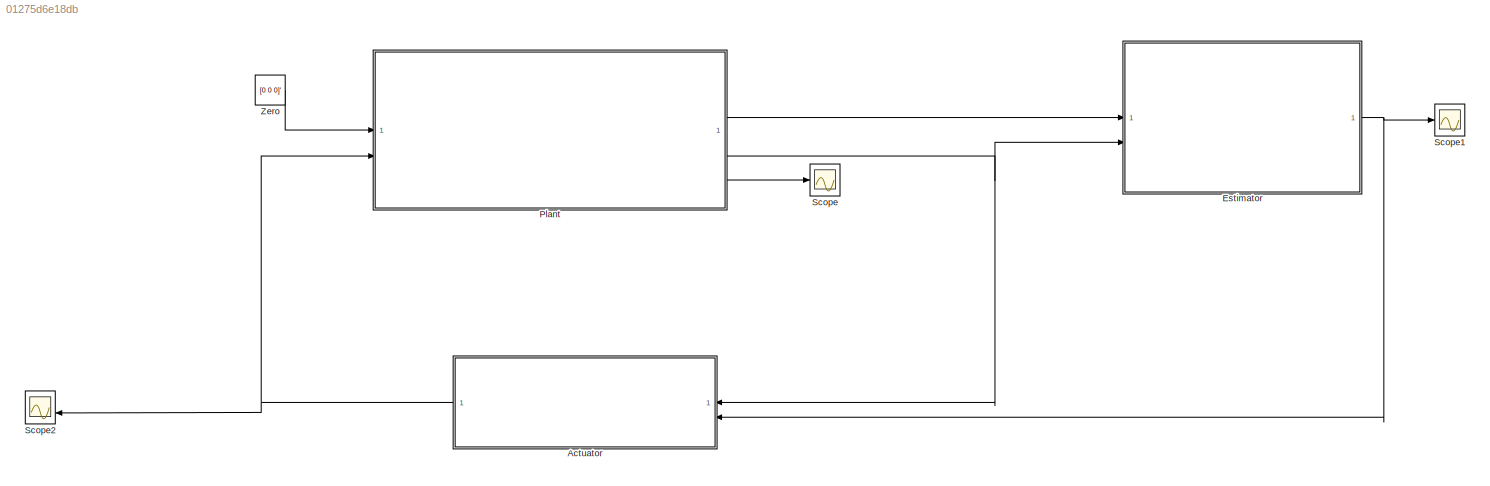
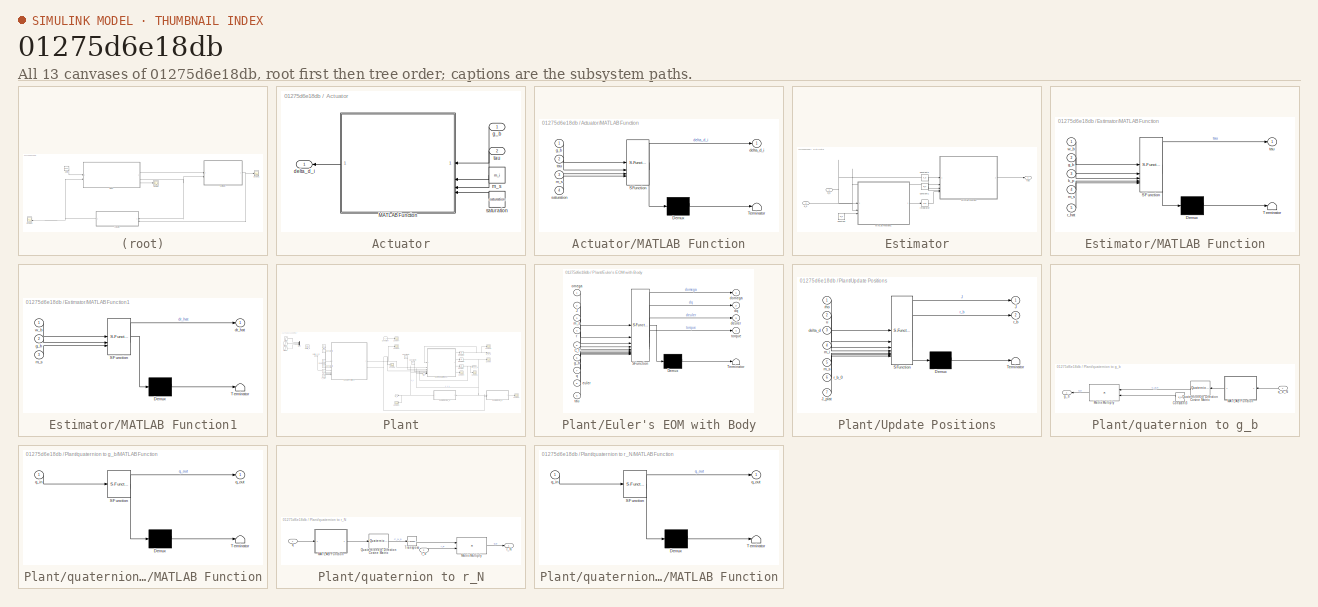
[diagram: thumbnail index - all 13 canvases of the model, root first then tree order]
MODEL slx_01275d6e18db
KIND model
CONFIG AbsTol = 1e-8
CONFIG EnableMultiTasking = off
CONFIG FixedStep = 0.05
CONFIG MaxStep = auto
CONFIG MinStep = auto
CONFIG RelTol = 1e-8
CONFIG SampleTimeConstraint = Unconstrained
CONFIG SolverName = ode15s
CONFIG StartTime = 0.0
CONFIG StopTime = tspan
BLOCK [SubSystem] Actuator
  NameLocation = top
BLOCK [SubSystem] Actuator/MATLAB Function
  ErrorFcn = Stateflow.Translate.translate
  NameLocation = top
  PermitHierarchicalResolution = ExplicitOnly
  SFBlockType = MATLAB Function
  TreatAsAtomicUnit = on
BLOCK [Demux] Actuator/MATLAB Function/ Demux 
  Outputs = 1
BLOCK [S-Function] Actuator/MATLAB Function/ SFunction 
  EnableBusSupport = on
  FunctionName = sf_sfun
  PortCounts = [4 2]
  SFcnIsStateOwnerBlock = off
  SFunctionDeploymentMode = off
  Tag = Stateflow S-Function 7
BLOCK [Terminator] Actuator/MATLAB Function/ Terminator 
BLOCK [Outport] Actuator/MATLAB Function/delta_d_i
BLOCK [Inport] Actuator/MATLAB Function/g_b
BLOCK [Inport] Actuator/MATLAB Function/m_s
  Port = 3
BLOCK [Inport] Actuator/MATLAB Function/saturation
  Port = 4
BLOCK [Inport] Actuator/MATLAB Function/tau
  Port = 2
BLOCK [Outport] Actuator/delta_d_i
  NameLocation = top
BLOCK [Inport] Actuator/g_b
  NameLocation = top
BLOCK [Constant] Actuator/m_s
  NameLocation = top
  Value = m_i
BLOCK [Constant] Actuator/saturation
  NameLocation = top
  Value = saturation
BLOCK [Inport] Actuator/tau
  NameLocation = top
  Port = 2
BLOCK [SubSystem] Estimator
BLOCK [Constant] Estimator/Constant
  Value = m_s
BLOCK [Constant] Estimator/Constant1
  Value = m_s
BLOCK [Constant] Estimator/Constant2
  Value = k_p
BLOCK [Integrator] Estimator/Integrator
  InitialCondition = r_hat_0
BLOCK [SubSystem] Estimator/MATLAB Function
  ErrorFcn = Stateflow.Translate.translate
  PermitHierarchicalResolution = ExplicitOnly
  SFBlockType = MATLAB Function
  TreatAsAtomicUnit = on
BLOCK [Demux] Estimator/MATLAB Function/ Demux 
  Outputs = 1
BLOCK [S-Function] Estimator/MATLAB Function/ SFunction 
  EnableBusSupport = on
  FunctionName = sf_sfun
  PortCounts = [5 2]
  SFcnIsStateOwnerBlock = off
  SFunctionDeploymentMode = off
  Tag = Stateflow S-Function 2
BLOCK [Terminator] Estimator/MATLAB Function/ Terminator 
BLOCK [Inport] Estimator/MATLAB Function/g_b
  Port = 2
BLOCK [Inport] Estimator/MATLAB Function/k_p
  Port = 3
BLOCK [Inport] Estimator/MATLAB Function/m_s
  Port = 4
BLOCK [Inport] Estimator/MATLAB Function/r_hat
  Port = 5
BLOCK [Outport] Estimator/MATLAB Function/tau
BLOCK [Inport] Estimator/MATLAB Function/w_b
BLOCK [SubSystem] Estimator/MATLAB Function1
  ErrorFcn = Stateflow.Translate.translate
  PermitHierarchicalResolution = ExplicitOnly
  SFBlockType = MATLAB Function
  TreatAsAtomicUnit = on
BLOCK [Demux] Estimator/MATLAB Function1/ Demux 
  Outputs = 1
BLOCK [S-Function] Estimator/MATLAB Function1/ SFunction 
  EnableBusSupport = on
  FunctionName = sf_sfun
  PortCounts = [3 2]
  SFcnIsStateOwnerBlock = off
  SFunctionDeploymentMode = off
  Tag = Stateflow S-Function 1
BLOCK [Terminator] Estimator/MATLAB Function1/ Terminator 
BLOCK [Outport] Estimator/MATLAB Function1/dr_hat
BLOCK [Inport] Estimator/MATLAB Function1/g_b
  Port = 2
BLOCK [Inport] Estimator/MATLAB Function1/m_s
  Port = 3
BLOCK [Inport] Estimator/MATLAB Function1/w_b
BLOCK [Inport] Estimator/g_b
  Port = 2
BLOCK [Outport] Estimator/tau
BLOCK [Inport] Estimator/w_b
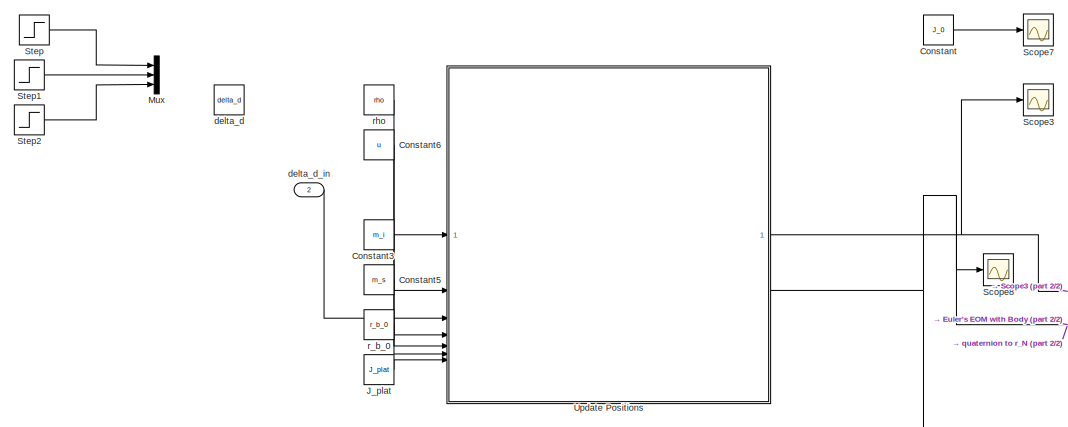
[diagram: Plant - part 1/2, top left region]
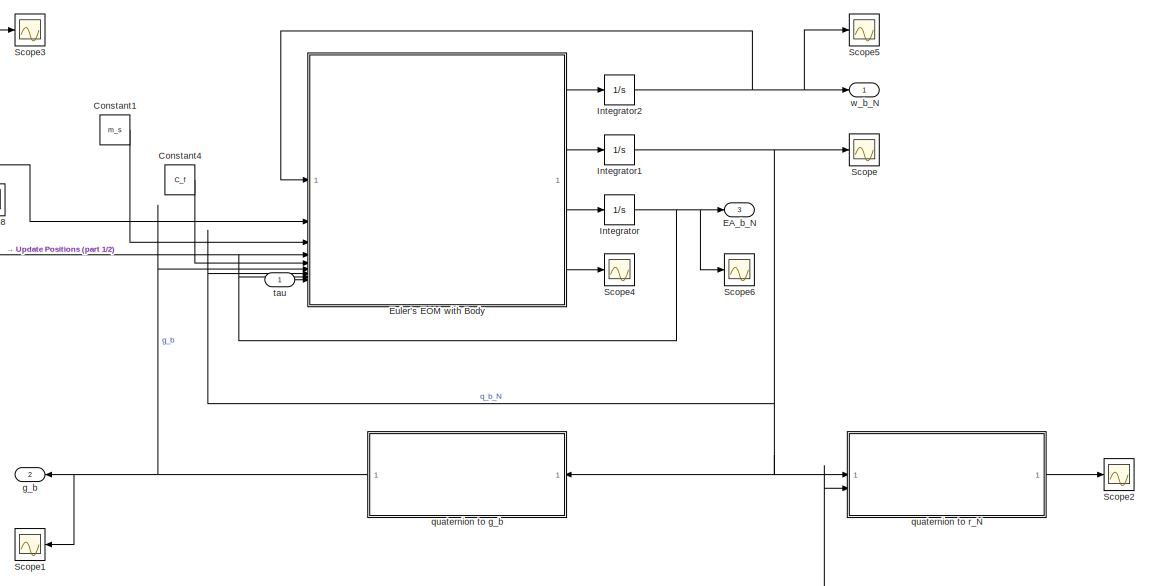
[diagram: Plant - part 2/2, right side, full height]
BLOCK [SubSystem] Plant
BLOCK [Constant] Plant/Constant
  Value = J_0
BLOCK [Constant] Plant/Constant1
  Value = m_s
BLOCK [Constant] Plant/Constant3
  Value = m_i
BLOCK [Constant] Plant/Constant4
  Value = C_f
BLOCK [Constant] Plant/Constant5
  Value = m_s
BLOCK [Constant] Plant/Constant6
  Value = u
BLOCK [Outport] Plant/EA_b_N
  Port = 3
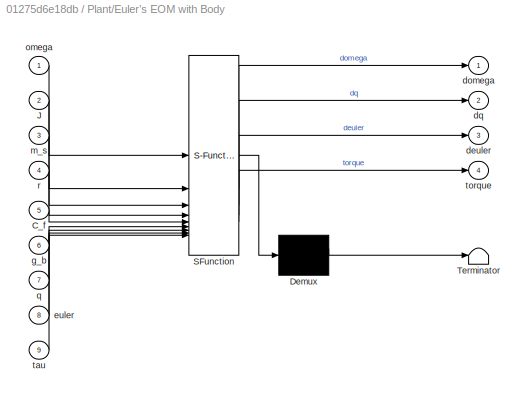
BLOCK [SubSystem] Plant/Euler's EOM with Body
  ErrorFcn = Stateflow.Translate.translate
  LibrarySourceBlock = simulink/User-Defined\nFunctions/MATLAB Function
  PermitHierarchicalResolution = ExplicitOnly
  SFBlockType = MATLAB Function
  TreatAsAtomicUnit = on
BLOCK [Demux] Plant/Euler's EOM with Body/ Demux 
  Outputs = 1
BLOCK [S-Function] Plant/Euler's EOM with Body/ SFunction 
  EnableBusSupport = on
  FunctionName = sf_sfun
  PortCounts = [9 5]
  SFcnIsStateOwnerBlock = off
  SFunctionDeploymentMode = off
  Tag = Stateflow S-Function 3
BLOCK [Terminator] Plant/Euler's EOM with Body/ Terminator 
BLOCK [Inport] Plant/Euler's EOM with Body/C_f
  Port = 5
BLOCK [Inport] Plant/Euler's EOM with Body/J
  Port = 2
BLOCK [Outport] Plant/Euler's EOM with Body/deuler
  Port = 3
BLOCK [Outport] Plant/Euler's EOM with Body/domega
BLOCK [Outport] Plant/Euler's EOM with Body/dq
  Port = 2
BLOCK [Inport] Plant/Euler's EOM with Body/euler
  Port = 8
BLOCK [Inport] Plant/Euler's EOM with Body/g_b
  Port = 6
BLOCK [Inport] Plant/Euler's EOM with Body/m_s
  Port = 3
BLOCK [Inport] Plant/Euler's EOM with Body/omega
BLOCK [Inport] Plant/Euler's EOM with Body/q
  Port = 7
BLOCK [Inport] Plant/Euler's EOM with Body/r
  Port = 4
BLOCK [Inport] Plant/Euler's EOM with Body/tau
  Port = 9
BLOCK [Outport] Plant/Euler's EOM with Body/torque
  Port = 4
BLOCK [Integrator] Plant/Integrator
  InitialCondition = EA_0
BLOCK [Integrator] Plant/Integrator1
  InitialCondition = q_0
BLOCK [Integrator] Plant/Integrator2
  InitialCondition = w_0
BLOCK [Constant] Plant/J_plat
  Value = J_plat
BLOCK [Mux] Plant/Mux
  DisplayOption = bar
  Inputs = 3
BLOCK [Scope] Plant/Scope
  Floating = off
  NumInputPorts = 1
  ScopeSpecificationString = Simulink.scopes.TimeScopeBlockCfg('CurrentConfiguration', extmgr.ConfigurationSet(extmgr.Configuration('Core','General UI',true),extmgr.Configuration('Core','Source UI',true),extmgr.Configuration('Sources','WiredSimulink',true,'DataLoggingVariableName','q_b_N','DataLogging',true,'DataLoggingSaveFormat','StructureWithTime'),extmgr.Configuration('Visuals','Time Domain',true,'SerializedDisplays',{str...<+1561ch>
BLOCK [Scope] Plant/Scope1
  Floating = off
  NameLocation = top
  NumInputPorts = 1
  ScopeSpecificationString = Simulink.scopes.TimeScopeBlockCfg('CurrentConfiguration', extmgr.ConfigurationSet(extmgr.Configuration('Core','General UI',true),extmgr.Configuration('Core','Source UI',true),extmgr.Configuration('Sources','WiredSimulink',true,'DataLoggingVariableName','g_b','DataLogging',true,'DataLoggingSaveFormat','StructureWithTime'),extmgr.Configuration('Visuals','Time Domain',true,'SerializedDisplays',{struc...<+1525ch>
BLOCK [Scope] Plant/Scope2
  Floating = off
  NumInputPorts = 1
  ScopeSpecificationString = Simulink.scopes.TimeScopeBlockCfg('CurrentConfiguration', extmgr.ConfigurationSet(extmgr.Configuration('Core','General UI',true),extmgr.Configuration('Core','Source UI',true),extmgr.Configuration('Sources','WiredSimulink',true,'DataLoggingVariableName','r_N','DataLogging',true,'DataLoggingSaveFormat','StructureWithTime'),extmgr.Configuration('Visuals','Time Domain',true,'SerializedDisplays',{struc...<+1567ch>
BLOCK [Scope] Plant/Scope3
  Floating = off
  NumInputPorts = 1
  ScopeSpecificationString = Simulink.scopes.TimeScopeBlockCfg('CurrentConfiguration', extmgr.ConfigurationSet(extmgr.Configuration('Core','General UI',true),extmgr.Configuration('Core','Source UI',true),extmgr.Configuration('Sources','WiredSimulink',true,'DataLoggingVariableName','ScopeData1'),extmgr.Configuration('Visuals','Time Domain',true,'SerializedDisplays',{struct('MinYLimReal','-0.05567','MaxYLimReal','0.50102','YLab...<+1683ch>
BLOCK [Scope] Plant/Scope4
  Floating = off
  NumInputPorts = 1
  ScopeSpecificationString = Simulink.scopes.TimeScopeBlockCfg('CurrentConfiguration', extmgr.ConfigurationSet(extmgr.Configuration('Core','General UI',true),extmgr.Configuration('Core','Source UI',true),extmgr.Configuration('Sources','WiredSimulink',true,'DataLoggingVariableName','torque','DataLogging',true,'DataLoggingSaveFormat','StructureWithTime'),extmgr.Configuration('Visuals','Time Domain',true,'SerializedDisplays',{st...<+1639ch>
BLOCK [Scope] Plant/Scope5
  Floating = off
  NumInputPorts = 1
  ScopeSpecificationString = Simulink.scopes.TimeScopeBlockCfg('CurrentConfiguration', extmgr.ConfigurationSet(extmgr.Configuration('Core','General UI',true),extmgr.Configuration('Core','Source UI',true),extmgr.Configuration('Sources','WiredSimulink',true,'DataLoggingVariableName','w_b_out','DataLogging',true,'DataLoggingSaveFormat','StructureWithTime'),extmgr.Configuration('Visuals','Time Domain',true,'SerializedDisplays',{s...<+1586ch>
BLOCK [Scope] Plant/Scope6
  Commented = on
  Floating = off
  NumInputPorts = 1
  ScopeSpecificationString = Simulink.scopes.TimeScopeBlockCfg('CurrentConfiguration', extmgr.ConfigurationSet(extmgr.Configuration('Core','General UI',true),extmgr.Configuration('Core','Source UI',true),extmgr.Configuration('Sources','WiredSimulink',true,'DataLoggingVariableName','ScopeData2'),extmgr.Configuration('Visuals','Time Domain',true,'SerializedDisplays',{struct('MinYLimReal','-0.39264','MaxYLimReal','3.53373','YLab...<+1490ch>
BLOCK [Scope] Plant/Scope7
  Floating = off
  NumInputPorts = 1
  ScopeSpecificationString = Simulink.scopes.TimeScopeBlockCfg('CurrentConfiguration', extmgr.ConfigurationSet(extmgr.Configuration('Core','General UI',true),extmgr.Configuration('Core','Source UI',true),extmgr.Configuration('Sources','WiredSimulink',true,'DataLoggingVariableName','ScopeData2'),extmgr.Configuration('Visuals','Time Domain',true,'SerializedDisplays',{struct('MinYLimReal','-0.00332','MaxYLimReal','0.02993','YLab...<+1916ch>
BLOCK [Scope] Plant/Scope8
  Floating = off
  NumInputPorts = 1
  ScopeSpecificationString = Simulink.scopes.TimeScopeBlockCfg('CurrentConfiguration', extmgr.ConfigurationSet(extmgr.Configuration('Core','General UI',true),extmgr.Configuration('Core','Source UI',true),extmgr.Configuration('Sources','WiredSimulink',true,'DataLoggingVariableName','ScopeData2'),extmgr.Configuration('Visuals','Time Domain',true,'SerializedDisplays',{struct('MinYLimReal','-0.1489','MaxYLimReal','0.14765','YLabe...<+1543ch>
BLOCK [Step] Plant/Step
  After = 0.028
  SampleTime = 0
  Time = 10
BLOCK [Step] Plant/Step1
  After = 0.028
  SampleTime = 0
  Time = 10
BLOCK [Step] Plant/Step2
  After = 0.028
  SampleTime = 0
  Time = 10
BLOCK [SubSystem] Plant/Update Positions
  ErrorFcn = Stateflow.Translate.translate
  PermitHierarchicalResolution = ExplicitOnly
  SFBlockType = MATLAB Function
  TreatAsAtomicUnit = on
BLOCK [Demux] Plant/Update Positions/ Demux 
  Outputs = 1
BLOCK [S-Function] Plant/Update Positions/ SFunction 
  EnableBusSupport = on
  FunctionName = sf_sfun
  PortCounts = [7 3]
  SFcnIsStateOwnerBlock = off
  SFunctionDeploymentMode = off
  Tag = Stateflow S-Function 6
BLOCK [Terminator] Plant/Update Positions/ Terminator 
BLOCK [Outport] Plant/Update Positions/J
BLOCK [Inport] Plant/Update Positions/J_plat
  Port = 7
BLOCK [Inport] Plant/Update Positions/delta_d
  Port = 3
BLOCK [Inport] Plant/Update Positions/m_i
  Port = 4
BLOCK [Inport] Plant/Update Positions/m_s
  Port = 5
BLOCK [Outport] Plant/Update Positions/r_b
  Port = 2
BLOCK [Inport] Plant/Update Positions/r_b_0
  Port = 6
BLOCK [Inport] Plant/Update Positions/rho
BLOCK [Inport] Plant/Update Positions/u
  Port = 2
BLOCK [Constant] Plant/delta_d
  Value = delta_d
BLOCK [Inport] Plant/delta_d_in
  NameLocation = left
  Port = 2
BLOCK [Outport] Plant/g_b
  NameLocation = top
  Port = 2
BLOCK [SubSystem] Plant/quaternion to g_b
BLOCK [Constant] Plant/quaternion to g_b/Constant3
  NameLocation = top
  Value = g_N
BLOCK [SubSystem] Plant/quaternion to g_b/MATLAB Function
  ErrorFcn = Stateflow.Translate.translate
  NameLocation = top
  PermitHierarchicalResolution = ExplicitOnly
  SFBlockType = MATLAB Function
  TreatAsAtomicUnit = on
BLOCK [Demux] Plant/quaternion to g_b/MATLAB Function/ Demux 
  Outputs = 1
BLOCK [S-Function] Plant/quaternion to g_b/MATLAB Function/ SFunction 
  EnableBusSupport = on
  FunctionName = sf_sfun
  PortCounts = [1 2]
  SFcnIsStateOwnerBlock = off
  SFunctionDeploymentMode = off
  Tag = Stateflow S-Function 5
BLOCK [Terminator] Plant/quaternion to g_b/MATLAB Function/ Terminator 
BLOCK [Inport] Plant/quaternion to g_b/MATLAB Function/q_in
BLOCK [Outport] Plant/quaternion to g_b/MATLAB Function/q_out
BLOCK [Product] Plant/quaternion to g_b/Matrix Multiply
  Multiplication = Matrix(*)
  NameLocation = top
BLOCK [Reference] Plant/quaternion to g_b/Quaternions to Direction Cosine Matrix  REF=sharedtransform/Quaternions to 
Direction Cosine Matrix
  LibrarySourceBlock = aerolibtransform2/Quaternions to \nDirection Cosine Matrix
  NameLocation = top
  SourceBlock = sharedtransform/Quaternions to \nDirection Cosine Matrix
  SourceType = Quaternion2DCM
BLOCK [Outport] Plant/quaternion to g_b/g_b
  NameLocation = top
BLOCK [Inport] Plant/quaternion to g_b/q_b_N
  NameLocation = top
BLOCK [SubSystem] Plant/quaternion to r_N
BLOCK [SubSystem] Plant/quaternion to r_N/MATLAB Function
  ErrorFcn = Stateflow.Translate.translate
  PermitHierarchicalResolution = ExplicitOnly
  SFBlockType = MATLAB Function
  TreatAsAtomicUnit = on
BLOCK [Demux] Plant/quaternion to r_N/MATLAB Function/ Demux 
  Outputs = 1
BLOCK [S-Function] Plant/quaternion to r_N/MATLAB Function/ SFunction 
  EnableBusSupport = on
  FunctionName = sf_sfun
  PortCounts = [1 2]
  SFcnIsStateOwnerBlock = off
  SFunctionDeploymentMode = off
  Tag = Stateflow S-Function 4
BLOCK [Terminator] Plant/quaternion to r_N/MATLAB Function/ Terminator 
BLOCK [Inport] Plant/quaternion to r_N/MATLAB Function/q_in
BLOCK [Outport] Plant/quaternion to r_N/MATLAB Function/q_out
BLOCK [Product] Plant/quaternion to r_N/Matrix Multiply
  Multiplication = Matrix(*)
BLOCK [Reference] Plant/quaternion to r_N/Quaternions to Direction Cosine Matrix  REF=sharedtransform/Quaternions to 
Direction Cosine Matrix
  LibrarySourceBlock = aerolibtransform2/Quaternions to \nDirection Cosine Matrix
  SourceBlock = sharedtransform/Quaternions to \nDirection Cosine Matrix
  SourceType = Quaternion2DCM
BLOCK [Math] Plant/quaternion to r_N/Transpose
  Operator = transpose
BLOCK [Inport] Plant/quaternion to r_N/q
BLOCK [Outport] Plant/quaternion to r_N/r_N
BLOCK [Inport] Plant/quaternion to r_N/r_b
  Port = 2
BLOCK [Constant] Plant/r_b_0
  Value = r_b_0
BLOCK [Constant] Plant/rho
  Value = rho
BLOCK [Inport] Plant/tau
BLOCK [Outport] Plant/w_b_N
BLOCK [Scope] Scope
  Floating = off
  NumInputPorts = 1
  ScopeSpecificationString = Simulink.scopes.TimeScopeBlockCfg('CurrentConfiguration', extmgr.ConfigurationSet(extmgr.Configuration('Core','General UI',true),extmgr.Configuration('Core','Source UI',true),extmgr.Configuration('Sources','WiredSimulink',true,'DataLogging',true,'DataLoggingVariableName','EA_N_b','DataLoggingSaveFormat','StructureWithTime'),extmgr.Configuration('Visuals','Time Domain',true,'SerializedDisplays',{st...<+1597ch>
BLOCK [Scope] Scope1
  Floating = off
  NumInputPorts = 1
  ScopeSpecificationString = Simulink.scopes.TimeScopeBlockCfg('CurrentConfiguration', extmgr.ConfigurationSet(extmgr.Configuration('Core','General UI',true),extmgr.Configuration('Core','Source UI',true),extmgr.Configuration('Sources','WiredSimulink',true,'DataLoggingVariableName','ScopeData1'),extmgr.Configuration('Visuals','Time Domain',true,'SerializedDisplays',{struct('MinYLimReal','-0.06479','MaxYLimReal','0.0072','YLabe...<+1515ch>
BLOCK [Scope] Scope2
  Floating = off
  NameLocation = top
  NumInputPorts = 2
  ScopeSpecificationString = Simulink.scopes.TimeScopeBlockCfg('CurrentConfiguration', extmgr.ConfigurationSet(extmgr.Configuration('Core','General UI',true),extmgr.Configuration('Core','Source UI',true),extmgr.Configuration('Sources','WiredSimulink',true,'DataLoggingVariableName','ScopeData1'),extmgr.Configuration('Visuals','Time Domain',true,'SerializedDisplays',{struct('MinYLimReal','-0.00173','MaxYLimReal','0.00159','YLab...<+1571ch>
BLOCK [Constant] Zero
  Value = [0 0 0]'
LINE Actuator/MATLAB Function:1 -> Actuator/delta_d_i:1
LINE Actuator/g_b:1 -> Actuator/MATLAB Function:1
LINE Actuator/m_s:1 -> Actuator/MATLAB Function:3
LINE Actuator/saturation:1 -> Actuator/MATLAB Function:4
LINE Actuator/tau:1 -> Actuator/MATLAB Function:2
NET Actuator:1 -> Plant:2, Scope2:2
LINE Estimator/Constant1:1 -> Estimator/MATLAB Function:4
LINE Estimator/Constant2:1 -> Estimator/MATLAB Function:3
LINE Estimator/Constant:1 -> Estimator/MATLAB Function1:3
LINE Estimator/Integrator:1 -> Estimator/MATLAB Function:5
LINE Estimator/MATLAB Function1:1 -> Estimator/Integrator:1
LINE Estimator/MATLAB Function:1 -> Estimator/tau:1
NET Estimator/g_b:1 -> Estimator/MATLAB Function1:2, Estimator/MATLAB Function:2
NET Estimator/w_b:1 -> Estimator/MATLAB Function1:1, Estimator/MATLAB Function:1
NET Estimator:1 -> Actuator:2, Scope1:1
LINE Plant/Constant1:1 -> Plant/Euler's EOM with Body:3
LINE Plant/Constant3:1 -> Plant/Update Positions:4
LINE Plant/Constant4:1 -> Plant/Euler's EOM with Body:5
LINE Plant/Constant5:1 -> Plant/Update Positions:5
LINE Plant/Constant6:1 -> Plant/Update Positions:2
LINE Plant/Constant:1 -> Plant/Scope7:1
LINE Plant/Euler's EOM with Body:1 -> Plant/Integrator2:1
LINE Plant/Euler's EOM with Body:2 -> Plant/Integrator1:1
LINE Plant/Euler's EOM with Body:3 -> Plant/Integrator:1
LINE Plant/Euler's EOM with Body:4 -> Plant/Scope4:1
NET Plant/Integrator1:1 -> Plant/Euler's EOM with Body:7, Plant/Scope:1, Plant/quaternion to g_b:1, Plant/quaternion to r_N:1
NET Plant/Integrator2:1 -> Plant/Euler's EOM with Body:1, Plant/Scope5:1, Plant/w_b_N:1
NET Plant/Integrator:1 -> Plant/EA_b_N:1, Plant/Euler's EOM with Body:8, Plant/Scope6:1
LINE Plant/J_plat:1 -> Plant/Update Positions:7
LINE Plant/Step1:1 -> Plant/Mux:2
LINE Plant/Step2:1 -> Plant/Mux:3
LINE Plant/Step:1 -> Plant/Mux:1
NET Plant/Update Positions:1 -> Plant/Euler's EOM with Body:2, Plant/Scope3:1
NET Plant/Update Positions:2 -> Plant/Euler's EOM with Body:4, Plant/Scope8:1, Plant/quaternion to r_N:2
LINE Plant/delta_d_in:1 -> Plant/Update Positions:3
LINE Plant/quaternion to g_b/Constant3:1 -> Plant/quaternion to g_b/Matrix Multiply:2
LINE Plant/quaternion to g_b/MATLAB Function:1 -> Plant/quaternion to g_b/Quaternions to Direction Cosine Matrix:1
LINE Plant/quaternion to g_b/Matrix Multiply:1 -> Plant/quaternion to g_b/g_b:1
LINE Plant/quaternion to g_b/Quaternions to Direction Cosine Matrix:1 -> Plant/quaternion to g_b/Matrix Multiply:1
LINE Plant/quaternion to g_b/q_b_N:1 -> Plant/quaternion to g_b/MATLAB Function:1
NET Plant/quaternion to g_b:1 -> Plant/Euler's EOM with Body:6, Plant/Scope1:1, Plant/g_b:1
LINE Plant/quaternion to r_N/MATLAB Function:1 -> Plant/quaternion to r_N/Quaternions to Direction Cosine Matrix:1
LINE Plant/quaternion to r_N/Matrix Multiply:1 -> Plant/quaternion to r_N/r_N:1
LINE Plant/quaternion to r_N/Quaternions to Direction Cosine Matrix:1 -> Plant/quaternion to r_N/Transpose:1
LINE Plant/quaternion to r_N/Transpose:1 -> Plant/quaternion to r_N/Matrix Multiply:1
LINE Plant/quaternion to r_N/q:1 -> Plant/quaternion to r_N/MATLAB Function:1
LINE Plant/quaternion to r_N/r_b:1 -> Plant/quaternion to r_N/Matrix Multiply:2
LINE Plant/quaternion to r_N:1 -> Plant/Scope2:1
LINE Plant/r_b_0:1 -> Plant/Update Positions:6
LINE Plant/rho:1 -> Plant/Update Positions:1
LINE Plant/tau:1 -> Plant/Euler's EOM with Body:9
LINE Plant:1 -> Estimator:1
NET Plant:2 -> Actuator:1, Estimator:2
LINE Plant:3 -> Scope:1
LINE Zero:1 -> Plant:1
note: NET lines group one-source signal fan-out (src -> all destinations, sorted); 1:1 wires keep LINE
CHART Actuator/MATLAB Function states=1 transitions=1
  STATE_LABEL 'eML_blk_kernel()'
  STATE_LABEL 'SCRIPT:\nfunction delta_d_i = fcn(g_b,tau,m_s,saturation)\n\ng_cross =  [0      -g_b(3)  g_b(2);\n        g_b(3)  0      -g_b(1);\n       -g_b(2)  g_b(1)  0 ];\n\ndelta_d_i = (g_cross*tau) / ((norm(g_b)^2) * m_s);\n\n% for i = 1:length(delta_d_i)\n%     if(delta_d_i(i) > saturation)\n%         delta_d_i(i) = saturation;\n%     elseif(delta_d_i(i) < -saturation)\n%         delta_d_i(i) = -saturation;\n%     end\n...<+7ch>'
CHART Estimator/MATLAB Function1 states=1 transitions=1
  STATE_LABEL 'eML_blk_kernel()'
  STATE_LABEL "SCRIPT:\nfunction dr_hat = fcn(w_b,g_b,m_s)\n\ng_cross =  [0      -g_b(3)  g_b(2);\n            g_b(3)  0      -g_b(1);\n           -g_b(2)  g_b(1)  0 ];\n\nkappa = -m_s*g_cross;\n\ndr_hat = kappa'*w_b;\n"
CHART Estimator/MATLAB Function states=1 transitions=1
  STATE_LABEL 'eML_blk_kernel()'
  STATE_LABEL "SCRIPT:\nfunction tau = fcn(w_b,g_b,k_p,m_s,r_hat)\n\nP = eye(3) - (g_b*g_b') / (norm(g_b)^2);\n\nw_p = P*w_b;\n\ntau = m_s*(cross(g_b,r_hat)) - k_p*w_p;"
CHART Plant/Euler's EOM with Body states=1 transitions=1
  STATE_LABEL 'eML_blk_kernel()'
  STATE_LABEL "SCRIPT:\nfunction [domega,dq,deuler,torque] = fcn(omega,J,m_s,r,C_f,g_b,q,euler,tau)\n\n% C_b_N = [1 - 2*(q(2)^2 + q(3)^2), 2*(q(1)*q(2) - q(4)*q(3)), 2*(q(1)*q(3) + q(4)*q(2));\n%    2*(q(1)*q(2) + (q(4)*q(3))), 1 - 2*(q(1)^2 + q(3)^2), 2*(q(2)*q(3) - q(4)*q(1));\n%     2*(q(1)*q(3) - q(4)*q(2)),  2*(q(1)*q(3) + q(4)*q(1)),  1 - 2*(q(1)^2 + q(2)^2)];\n\n% g_b = C_b_N*[0 0 -9.81]';\n\nr_cross = [0        -...<+1337ch>"
CHART Plant/quaternion to r_N/MATLAB Function states=1 transitions=1
  STATE_LABEL 'eML_blk_kernel()'
  STATE_LABEL 'SCRIPT:\nfunction q_out = moveEtaFirst(q_in)\n\nq_out = [q_in(4) q_in(1) q_in(2) q_in(3)];'
CHART Plant/quaternion to g_b/MATLAB Function states=1 transitions=1
  STATE_LABEL 'eML_blk_kernel()'
  STATE_LABEL 'SCRIPT:\nfunction q_out = moveEtaFirst(q_in)\n\nq_out = [q_in(4) q_in(1) q_in(2) q_in(3)];'
CHART Plant/Update Positions states=1 transitions=1
  STATE_LABEL 'eML_blk_kernel()'
  STATE_LABEL 'SCRIPT:\nfunction [J,r_b] = fcn(rho,u,delta_d,m_i,m_s,r_b_0,J_plat)\n\nsum = zeros(size(u,2), 1);\nfor i = 1:size(u,2)\n    sum = sum + m_i*delta_d(i)*u(:,i);\nend\ndel_r_b = (1/m_s)*sum;\nr_b = r_b_0 + del_r_b;\n\nsum = zeros(size(rho,2),size(rho,2));\nfor i = 1:size(rho,2)\n    R_i = rho(:,i) + delta_d(i)*u(:,i);\n    R_i_cross = [0 -R_i(3) R_i(2);\n                 R_i(3) 0 -R_i(1);\n                -R_i(2) R...<+75ch>'
CHART  states=0 transitions=0
CHART  states=0 transitions=0
CHART  states=0 transitions=0
CHART  states=0 transitions=0
CHART  states=0 transitions=0
CHART  states=0 transitions=0
CHART  states=0 transitions=0
